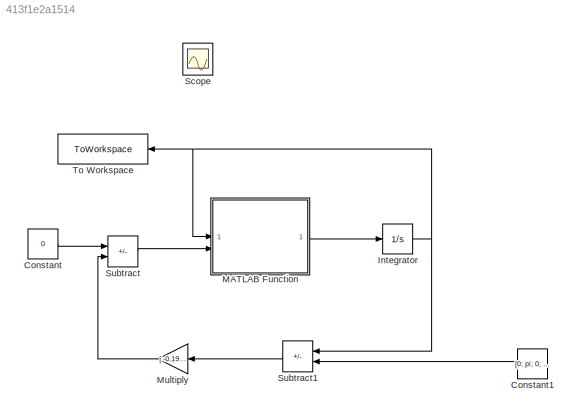
MODEL slx_413f1e2a1514
KIND model
CONFIG AbsTol = auto
CONFIG EnableMultiTasking = off
CONFIG FixedStep = auto
CONFIG MaxStep = auto
CONFIG MinStep = auto
CONFIG RelTol = 1e-12
CONFIG SampleTimeConstraint = Unconstrained
CONFIG SolverName = VariableStepAuto
CONFIG StartTime = 0.0
CONFIG StopTime = 3
BLOCK [Constant] Constant
  Value = 0
BLOCK [Constant] Constant1
  Value = [0; pi; 0; 0]
BLOCK [Integrator] Integrator
  IgnoreLimit = on
  InitialCondition = [0; pi/2; 0; 0]
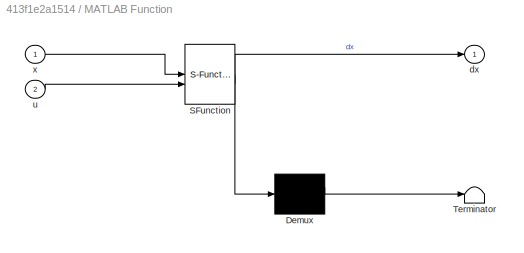
BLOCK [SubSystem] MATLAB Function
  ErrorFcn = Stateflow.Translate.translate
  PermitHierarchicalResolution = ExplicitOnly
  SFBlockType = MATLAB Function
  TreatAsAtomicUnit = on
BLOCK [Demux] MATLAB Function/ Demux 
  Outputs = 1
BLOCK [S-Function] MATLAB Function/ SFunction 
  EnableBusSupport = on
  FunctionName = sf_sfun
  PortCounts = [2 2]
  SFcnIsStateOwnerBlock = off
  SFunctionDeploymentMode = off
  Tag = Stateflow S-Function 2
BLOCK [Terminator] MATLAB Function/ Terminator 
BLOCK [Outport] MATLAB Function/dx
BLOCK [Inport] MATLAB Function/u
  Port = 2
BLOCK [Inport] MATLAB Function/x
BLOCK [Gain] Multiply
  Gain = [ -0.1936   25.1799   -1.0893    2.4725]
  Multiplication = Matrix(K*u)
BLOCK [Scope] Scope
  Floating = off
  IOType = viewer
  NumInputPorts = 1
  ScopeSpecificationString = Simulink.scopes.TimeScopeBlockCfg('CurrentConfiguration', extmgr.ConfigurationSet(extmgr.Configuration('Core','General UI',true),extmgr.Configuration('Core','Source UI',true),extmgr.Configuration('Sources','WiredSimulink',true),extmgr.Configuration('Visuals','Time Domain',true,'SerializedDisplays',{struct('MinYLimReal','-1.07389','MaxYLimReal','7.21761','YLabelReal','','MinYLimMag','0.00000','MaxY...<+1557ch>
BLOCK [Sum] Subtract
  IconShape = rectangular
  Inputs = +-
BLOCK [Sum] Subtract1
  IconShape = rectangular
  Inputs = +-
BLOCK [ToWorkspace] To Workspace
  FixptAsFi = on
  MaxDataPoints = inf
  SampleTime = -1
  SaveFormat = Timeseries
  VariableName = x
LINE Constant1:1 -> Subtract1:2
LINE Constant:1 -> Subtract:1
NET Integrator:1 -> MATLAB Function:1, Subtract1:1, To Workspace:1
LINE MATLAB Function:1 -> Integrator:1
LINE Multiply:1 -> Subtract:2
LINE Subtract1:1 -> Multiply:1
LINE Subtract:1 -> MATLAB Function:2
note: NET lines group one-source signal fan-out (src -> all destinations, sorted); 1:1 wires keep LINE
CHART MATLAB Function states=1 transitions=1
  STATE_LABEL 'eML_blk_kernel()'
  STATE_LABEL 'SCRIPT:\nfunction dx = servoNonLinear(x,u)\n%% Motor\n% Resistance\nRm = 8.4;\n% Current-torque (N-m/A)\nkt = 0.042;\n% Back-emf constant (V-s/rad)\nkm = 0.042;\n%\n%% Rotary Arm\n% Mass (kg)\nmr = 0.095;\n% Total length (m)\nr = 0.085;\n% Moment of inertia about pivot (kg-m^2)\nJr = mr*r^2/3;\n% Equivalent Viscous Damping Coefficient (N-m-s/rad)\nbr = 1e-3; % damping tuned heuristically to match QUBE-Sero 2 respon...<+1159ch>'
CHART  states=0 transitions=0
